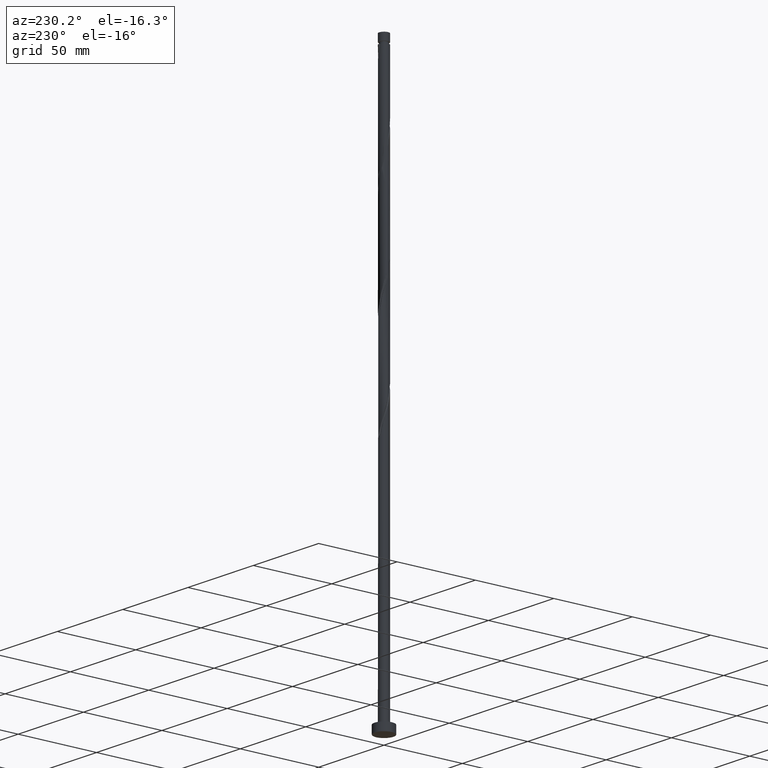
[diagram: clean part render]
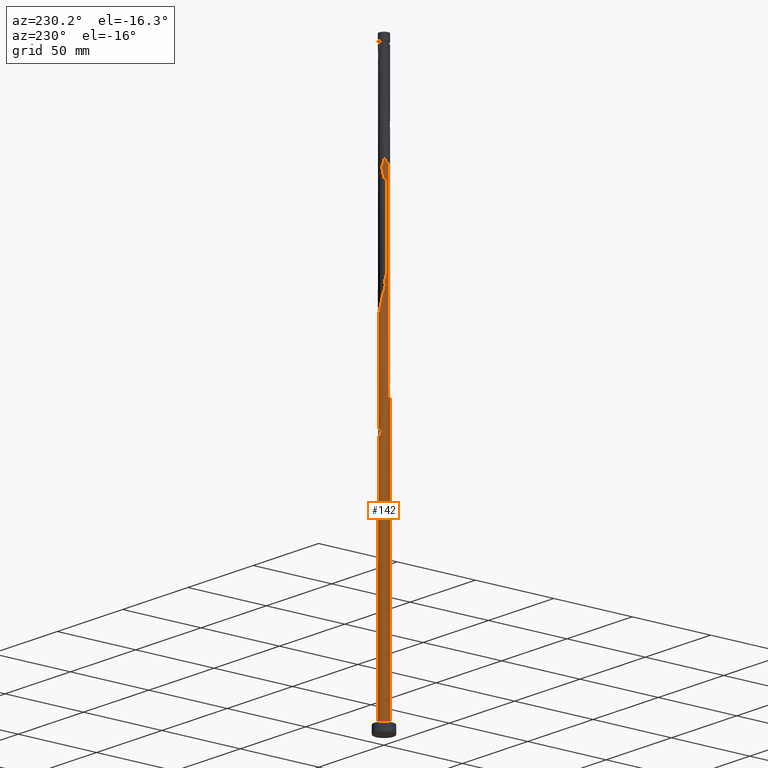
[diagram: same view with one face highlighted and labeled with its STEP entity id]
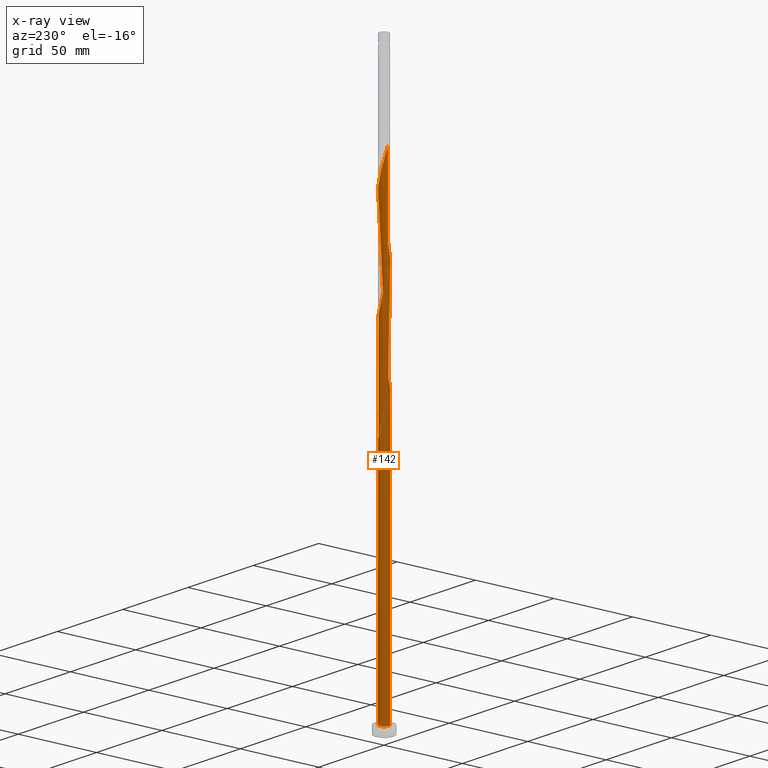
[diagram: x-ray of the same camera — body ghosted, the highlighted face saturated]
A machine part, auxiliary view. The second image highlights one B-rep face of the part: STEP entity #142.
The next image is the same camera in x-ray: the body ghosted, the highlighted face saturated — about 0% of this face is hidden behind the body in this view.
In plain terms, the highlighted cylindrical surface (bore or boss wall) has radius 3 mm, axis along (-0, -0, -1).
Its self-contained STEP definition (entity closure, byte-faithful):
#40 = CARTESIAN_POINT ( 'NONE',  ( 2.956194341916741575, 0.6002808636434365797, 202.1849267626110986 ) ) ;
#49 = CARTESIAN_POINT ( 'NONE',  ( -2.611625341554442148, -1.476283534877588455, 238.8515934292777843 ) ) ;
#62 = CARTESIAN_POINT ( 'NONE',  ( 0.000000000000000000, 0.000000000000000000, 5.000000000000000000 ) ) ;
#68 = CARTESIAN_POINT ( 'NONE',  ( -2.611625341554442148, -1.476283534877588455, 172.1849267626111839 ) ) ;
#83 = CARTESIAN_POINT ( 'NONE',  ( -2.986297077045553916, -0.2864083930844387171, 234.4071489848333556 ) ) ;
#92 = CARTESIAN_POINT ( 'NONE',  ( 2.986297077045553916, 0.2864083930844371628, 201.0738156515000696 ) ) ;
#98 = CARTESIAN_POINT ( 'NONE',  ( -2.247618455994262465, 1.987010638188425382, 163.2960378737222698 ) ) ;
#100 = CARTESIAN_POINT ( 'NONE',  ( 0.9582386936374930331, 2.860279830445437099, 213.2960378737222698 ) ) ;
#106 = CARTESIAN_POINT ( 'NONE',  ( -2.844610918258239529, 0.9529893618115767850, 163.2960378737222698 ) ) ;
#110 = CARTESIAN_POINT ( 'NONE',  ( -2.211065689225172992, 2.027606598413812744, 292.1849267626112692 ) ) ;
#116 = CARTESIAN_POINT ( 'NONE',  ( -1.484415317302710813, 2.626010904050888328, 155.5182600959444699 ) ) ;
#124 = CARTESIAN_POINT ( 'NONE',  ( -2.584311715169902879, 1.523592123514563745, 161.0738156515001265 ) ) ;
#126 = CARTESIAN_POINT ( 'NONE',  ( 2.211065689225172992, -2.027606598413812744, 258.8515934292778411 ) ) ;
#141 = CARTESIAN_POINT ( 'NONE',  ( 0.000000000000000000, 0.000000000000000000, 358.0000000000000000 ) ) ;
#142 = ADVANCED_FACE ( 'NONE', ( #454 ), #891, .T. ) ;
#147 = LINE ( 'NONE', #191, #238 ) ;
#185 = CARTESIAN_POINT ( 'NONE',  ( -0.02731362638454002886, -2.999875658392152200, 183.2960378737222982 ) ) ;
#191 = CARTESIAN_POINT ( 'NONE',  ( -3.000000000000000444, 0.000000000000000000, 358.0000000000000000 ) ) ;
#194 = VERTEX_POINT ( 'NONE', #1375 ) ;
#195 = EDGE_CURVE ( 'NONE', #828, #194, #651, .T. ) ;
#196 = CARTESIAN_POINT ( 'NONE',  ( -2.944774136347770632, 0.6540087066196507148, 231.0738156515000412 ) ) ;
#230 = CARTESIAN_POINT ( 'NONE',  ( -2.861491667719901599, -0.9010357570982421294, 236.6293712070556410 ) ) ;
#237 = CARTESIAN_POINT ( 'NONE',  ( -2.956194341916741575, -0.6002808636434369127, 168.8515934292778411 ) ) ;
#238 = VECTOR ( 'NONE', #1182, 1000.000000000000000 ) ;
#243 = CARTESIAN_POINT ( 'NONE',  ( -0.3426132633519640147, -2.997004880578673980, 248.8515934292777843 ) ) ;
#249 = CARTESIAN_POINT ( 'NONE',  ( -3.000000000000003997, 0.1709212123392956084, 166.1205588763717174 ) ) ;
#251 = CARTESIAN_POINT ( 'NONE',  ( 2.844610918258240417, -0.9529893618115777842, 196.6293712070556126 ) ) ;
#256 = CARTESIAN_POINT ( 'NONE',  ( -3.000000000000003553, -3.632464947221577223E-15, 166.7261501857563246 ) ) ;
#258 = CARTESIAN_POINT ( 'NONE',  ( 2.424175730171095555, -1.795214230025625968, 259.9627045403889838 ) ) ;
#265 = CARTESIAN_POINT ( 'NONE',  ( -0.9582386936374900355, 2.860279830445434879, 157.7404823181667552 ) ) ;
#269 = CARTESIAN_POINT ( 'NONE',  ( 2.766788993523061624, 1.201790650553045792, 271.0738156515000128 ) ) ;
#278 = CARTESIAN_POINT ( 'NONE',  ( 2.844610918258240417, -0.9529893618115777842, 263.2960378737222413 ) ) ;
#297 = CARTESIAN_POINT ( 'NONE',  ( 2.744447700168709758, -1.251970017003502855, 262.1849267626111555 ) ) ;
#310 = ORIENTED_EDGE ( 'NONE', *, *, #1020, .T. ) ;
#331 = CARTESIAN_POINT ( 'NONE',  ( -2.956194341916741575, -0.6002808636434369127, 235.5182600959444983 ) ) ;
#341 = CARTESIAN_POINT ( 'NONE',  ( 0.02731362638454045560, 2.999875658392152200, 216.6293712070555273 ) ) ;
#349 = CARTESIAN_POINT ( 'NONE',  ( -2.456461689585823116, -1.750776419202129119, 173.2960378737222413 ) ) ;
#368 = DIRECTION ( 'NONE',  ( 0.000000000000000000, 0.000000000000000000, 1.000000000000000000 ) ) ;
#371 = CARTESIAN_POINT ( 'NONE',  ( 3.000000000000000444, 0.000000000000000000, 5.000000000000000000 ) ) ;
#374 = CARTESIAN_POINT ( 'NONE',  ( 2.247618455994266462, 1.987010638188425382, 207.7404823181667268 ) ) ;
#379 = DIRECTION ( 'NONE',  ( 1.000000000000000000, 0.000000000000000000, 0.000000000000000000 ) ) ;
#380 = EDGE_CURVE ( 'NONE', #488, #598, #1190, .T. ) ;
#384 = CARTESIAN_POINT ( 'NONE',  ( -1.741185482790980066, 2.443004935426443591, 223.2960378737222982 ) ) ;
#393 = CARTESIAN_POINT ( 'NONE',  ( 2.944774136347770188, -0.6540087066196526022, 197.7404823181666416 ) ) ;
#395 = EDGE_CURVE ( 'NONE', #828, #719, #788, .T. ) ;
#408 = CARTESIAN_POINT ( 'NONE',  ( 0.2879860105828859762, 3.002746436205628644, 153.2960378737222982 ) ) ;
#410 = CARTESIAN_POINT ( 'NONE',  ( 2.944774136347770188, -0.6540087066196526022, 264.4071489848333272 ) ) ;
#415 = VECTOR ( 'NONE', #1797, 1000.000000000000000 ) ;
#419 = CARTESIAN_POINT ( 'NONE',  ( 1.195207115623886596, -2.751632233922632231, 254.4071489848333556 ) ) ;
#429 = CARTESIAN_POINT ( 'NONE',  ( -1.195207115623887706, 2.751632233922632231, 287.7404823181666984 ) ) ;
#443 = DIRECTION ( 'NONE',  ( -1.000000000000000000, 0.000000000000000000, 0.000000000000000000 ) ) ;
#449 = AXIS2_PLACEMENT_3D ( 'NONE', #62, #654, #1825 ) ;
#454 = FACE_OUTER_BOUND ( 'NONE', #1772, .T. ) ;
#475 = CARTESIAN_POINT ( 'NONE',  ( -2.980586974261068445, 0.3407363920471043750, 232.1849267626111839 ) ) ;
#481 = CARTESIAN_POINT ( 'NONE',  ( -3.000000000000003553, -3.632464947221577223E-15, 166.7261501857563246 ) ) ;
#488 = VERTEX_POINT ( 'NONE', #700 ) ;
#489 = CARTESIAN_POINT ( 'NONE',  ( 0.5969924622639748435, -2.940000000000003944, 185.5182600959444699 ) ) ;
#498 = CARTESIAN_POINT ( 'NONE',  ( -2.844610918258239529, 0.9529893618115767850, 229.9627045403888985 ) ) ;
#525 = CARTESIAN_POINT ( 'NONE',  ( -2.766788993523061180, -1.201790650553047346, 171.0738156515000128 ) ) ;
#529 = CARTESIAN_POINT ( 'NONE',  ( -1.531984494871653890, -2.598546826576329849, 244.4071489848333556 ) ) ;
#532 = ORIENTED_EDGE ( 'NONE', *, *, #1286, .F. ) ;
#538 = CARTESIAN_POINT ( 'NONE',  ( 2.861491667719901599, 0.9010357570982413522, 203.2960378737222982 ) ) ;
#543 = CIRCLE ( 'NONE', #449, 3.000000000000000444 ) ;
#547 = CARTESIAN_POINT ( 'NONE',  ( -3.000000000000006217, 0.1709212123392917226, 299.4538922097051454 ) ) ;
#552 = CARTESIAN_POINT ( 'NONE',  ( -0.5969924622639745104, 2.940000000000003499, 152.1849267626111271 ) ) ;
#554 = CARTESIAN_POINT ( 'NONE',  ( 2.247618455994266462, 1.987010638188425382, 274.4071489848334409 ) ) ;
#561 = CARTESIAN_POINT ( 'NONE',  ( -2.744447700168709758, 1.251970017003502411, 162.1849267626111555 ) ) ;
#563 = CARTESIAN_POINT ( 'NONE',  ( -2.744447700168709758, 1.251970017003502411, 295.5182600959444130 ) ) ;
#573 = CARTESIAN_POINT ( 'NONE',  ( -2.424175730171096443, 1.795214230025625302, 293.2960378737222413 ) ) ;
#576 = ORIENTED_EDGE ( 'NONE', *, *, #195, .F. ) ;
#579 = CARTESIAN_POINT ( 'NONE',  ( -2.211065689225172992, 2.027606598413812744, 158.8515934292777843 ) ) ;
#598 = VERTEX_POINT ( 'NONE', #620 ) ;
#620 = CARTESIAN_POINT ( 'NONE',  ( 0.5969924622639757317, 2.940000000000000835, 152.1849267626111271 ) ) ;
#633 = CARTESIAN_POINT ( 'NONE',  ( 2.456461689585824448, 1.750776419202128231, 206.6293712070555841 ) ) ;
#643 = ORIENTED_EDGE ( 'NONE', *, *, #1366, .F. ) ;
#644 = CARTESIAN_POINT ( 'NONE',  ( -2.247618455994265574, -1.987010638188425826, 241.0738156515000696 ) ) ;
#651 = LINE ( 'NONE', #1221, #415 ) ;
#654 = DIRECTION ( 'NONE',  ( 0.000000000000000000, 0.000000000000000000, 1.000000000000000000 ) ) ;
#674 = CARTESIAN_POINT ( 'NONE',  ( -2.456461689585823116, -1.750776419202129119, 239.9627045403889269 ) ) ;
#681 = CARTESIAN_POINT ( 'NONE',  ( -2.211065689225172992, 2.027606598413812744, 225.5182600959444983 ) ) ;
#685 = CARTESIAN_POINT ( 'NONE',  ( 0.000000000000000000, 0.000000000000000000, 5.000000000000000000 ) ) ;
#686 = CARTESIAN_POINT ( 'NONE',  ( -2.038775222402706699, -2.223244857174724309, 175.5182600959444983 ) ) ;
#688 = CARTESIAN_POINT ( 'NONE',  ( -1.245111594254570742, 2.729413328510881254, 158.8515934292777274 ) ) ;
#690 = CARTESIAN_POINT ( 'NONE',  ( -2.944774136347770632, 0.6540087066196507148, 297.7404823181666984 ) ) ;
#698 = CARTESIAN_POINT ( 'NONE',  ( -2.956194341916738466, 0.6002808636434369127, 168.8515934292778695 ) ) ;
#700 = CARTESIAN_POINT ( 'NONE',  ( -0.5969924622639745104, 2.940000000000003499, 152.1849267626111271 ) ) ;
#708 = CARTESIAN_POINT ( 'NONE',  ( 1.785379858637181405, 2.410895841875525747, 276.6293712070556694 ) ) ;
#714 = CARTESIAN_POINT ( 'NONE',  ( -2.980586974261068445, 0.3407363920471043750, 165.5182600959444983 ) ) ;
#716 = CARTESIAN_POINT ( 'NONE',  ( 2.456461689585824448, 1.750776419202128231, 273.2960378737222982 ) ) ;
#719 = VERTEX_POINT ( 'NONE', #1081 ) ;
#724 = CARTESIAN_POINT ( 'NONE',  ( -1.997955648279249319, 2.259998966802000631, 157.7404823181666416 ) ) ;
#727 = CARTESIAN_POINT ( 'NONE',  ( 0.3426132633519643478, 2.997004880578673980, 282.1849267626111555 ) ) ;
#731 = DIRECTION ( 'NONE',  ( -0.000000000000000000, -0.000000000000000000, -1.000000000000000000 ) ) ;
#733 = EDGE_CURVE ( 'NONE', #719, #1487, #147, .T. ) ;
#777 = CARTESIAN_POINT ( 'NONE',  ( 0.9059989139450632667, -2.877253563794376578, 186.6293712070556126 ) ) ;
#787 = CARTESIAN_POINT ( 'NONE',  ( -2.766788993523061180, -1.201790650553047346, 237.7404823181666700 ) ) ;
#788 =( BOUNDED_CURVE ( )  B_SPLINE_CURVE ( 2, ( #481, #1071, #807, #237, #1086, #525, #68, #349, #1867, #686, #1147, #1273, #996, #1126, #1414, #1702, #185, #842, #489, #777, #1845, #833, #1261, #1077, #925, #1118, #1692, #1511, #251, #393, #1357, #1502, #92, #40, #538, #1269, #986, #633, #374, #1639, #1558, #1219, #1085, #100, #1406, #1651, #341, #1540, #1794, #1209, #1397, #936, #384, #823, #681, #1365, #1782, #1836, #498, #196, #475, #1066, #83, #331, #230, #787, #49, #674, #644, #1229, #977, #529, #1805, #1659, #1550, #243, #968, #1277, #1889, #860, #419, #1854, #876, #1600, #126, #258, #1029, #297, #278, #410, #1449, #1861, #1305, #849, #887, #269, #1422, #716, #554, #993, #708, #1002, #1433, #1879, #1296, #727, #1012, #867, #1583, #1591, #429, #1135, #1745, #1871, #110, #573, #1573, #563, #1461, #690, #1162, #547, #1021 ),
 .UNSPECIFIED., .F., .T. ) 
 B_SPLINE_CURVE_WITH_KNOTS ( ( 3, 2, 2, 2, 2, 2, 2, 2, 2, 2, 2, 2, 2, 2, 2, 2, 2, 2, 2, 2, 2, 2, 2, 2, 2, 2, 2, 2, 2, 2, 2, 2, 2, 2, 2, 2, 2, 2, 2, 2, 2, 2, 2, 2, 2, 2, 2, 2, 2, 2, 2, 2, 2, 2, 2, 2, 2, 2, 2, 2, 2, 3 ),
 ( 0.05452860127731152390, 0.05833333333333334814, 0.06666666666666665186, 0.07499999999999995559, 0.08333333333333337034, 0.09166666666666667407, 0.09999999999999997780, 0.1083333333333332815, 0.1166666666666666963, 0.1250000000000000000, 0.1333333333333333037, 0.1416666666666667185, 0.1500000000000000222, 0.1583333333333333259, 0.1666666666666666297, 0.1750000000000000444, 0.1833333333333333481, 0.1916666666666666519, 0.1999999999999999556, 0.2083333333333333703, 0.2166666666666666741, 0.2249999999999999778, 0.2333333333333332815, 0.2416666666666666963, 0.2500000000000000000, 0.2583333333333333037, 0.2666666666666667185, 0.2750000000000000222, 0.2833333333333333259, 0.2916666666666666297, 0.3000000000000000444, 0.3083333333333333481, 0.3166666666666666519, 0.3249999999999999556, 0.3333333333333333703, 0.3416666666666666741, 0.3499999999999999778, 0.3583333333333332815, 0.3666666666666666963, 0.3750000000000000000, 0.3833333333333333037, 0.3916666666666667185, 0.4000000000000000222, 0.4083333333333333259, 0.4166666666666666297, 0.4250000000000000444, 0.4333333333333333481, 0.4416666666666666519, 0.4499999999999999556, 0.4583333333333333703, 0.4666666666666666741, 0.4749999999999999778, 0.4833333333333332815, 0.4916666666666666963, 0.5000000000000000000, 0.5083333333333333037, 0.5166666666666666075, 0.5250000000000000222, 0.5333333333333333259, 0.5416666666666667407, 0.5500000000000000444, 0.5545286012773116280 ),
 .UNSPECIFIED. ) 
 CURVE ( )  GEOMETRIC_REPRESENTATION_ITEM ( )  RATIONAL_B_SPLINE_CURVE ( ( 0.9066196499552440224, 0.9068171577856567467, 0.9090909090909556900, 0.9041108139712038527, 0.9090909090909556900, 0.9041108139712038527, 0.9090909090909556900, 0.9041108139712038527, 0.9090909090909556900, 0.9041108139712038527, 0.9090909090909556900, 0.9041108139712038527, 0.9090909090909556900, 0.9041108139712038527, 0.9090909090909556900, 0.9041108139712038527, 0.9090909090909556900, 0.9041108139712038527, 0.9090909090909556900, 0.9041108139712038527, 0.9090909090909556900, 0.9041108139712038527, 0.9090909090909556900, 0.9041108139712038527, 0.9090909090909556900, 0.9041108139712038527, 0.9090909090909556900, 0.9041108139712038527, 0.9090909090909556900, 0.9041108139712038527, 0.9090909090909556900, 0.9041108139712038527, 0.9090909090909556900, 0.9041108139712038527, 0.9090909090909556900, 0.9041108139712038527, 0.9090909090909556900, 0.9041108139712038527, 0.9090909090909556900, 0.9041108139712038527, 0.9090909090909556900, 0.9041108139712038527, 0.9090909090909556900, 0.9041108139712038527, 0.9090909090909556900, 0.9041108139712038527, 0.9090909090909556900, 0.9041108139712038527, 0.9090909090909556900, 0.9041108139712038527, 0.9090909090909556900, 0.9041108139712038527, 0.9090909090909556900, 0.9041108139712038527, 0.9090909090909556900, 0.9041108139712038527, 0.9090909090909556900, 0.9041108139712038527, 0.9090909090909556900, 0.9041108139712038527, 0.9090909090909556900, 0.9041108139712038527, 0.9090909090909556900, 0.9041108139712038527, 0.9090909090909556900, 0.9041108139712038527, 0.9090909090909556900, 0.9041108139712038527, 0.9090909090909556900, 0.9041108139712038527, 0.9090909090909556900, 0.9041108139712038527, 0.9090909090909556900, 0.9041108139712038527, 0.9090909090909556900, 0.9041108139712038527, 0.9090909090909556900, 0.9041108139712038527, 0.9090909090909556900, 0.9041108139712038527, 0.9090909090909556900, 0.9041108139712038527, 0.9090909090909556900, 0.9041108139712038527, 0.9090909090909556900, 0.9041108139712038527, 0.9090909090909556900, 0.9041108139712038527, 0.9090909090909556900, 0.9041108139712038527, 0.9090909090909556900, 0.9041108139712038527, 0.9090909090909556900, 0.9041108139712038527, 0.9090909090909556900, 0.9041108139712038527, 0.9090909090909556900, 0.9041108139712038527, 0.9090909090909556900, 0.9041108139712038527, 0.9090909090909556900, 0.9041108139712038527, 0.9090909090909556900, 0.9041108139712038527, 0.9090909090909556900, 0.9041108139712038527, 0.9090909090909556900, 0.9041108139712038527, 0.9090909090909556900, 0.9041108139712038527, 0.9090909090909556900, 0.9041108139712038527, 0.9090909090909556900, 0.9041108139712038527, 0.9090909090909556900, 0.9041108139712038527, 0.9090909090909556900, 0.9041108139712038527, 0.9090909090909556900, 0.9041108139712038527, 0.9090909090909556900, 0.9063845652765026850, 0.9066196499552440224 ) ) 
 REPRESENTATION_ITEM ( '' )  );
#798 =( BOUNDED_CURVE ( )  B_SPLINE_CURVE ( 2, ( #552, #1294, #1563, #116, #1556, #724, #579, #1742, #124, #561, #106, #1420, #714, #249, #256 ),
 .UNSPECIFIED., .F., .T. ) 
 B_SPLINE_CURVE_WITH_KNOTS ( ( 3, 2, 2, 2, 2, 2, 2, 3 ),
 ( 0.000000000000000000, 0.008333333333333303727, 0.01666666666666671848, 0.02500000000000002220, 0.03333333333333332593, 0.04166666666666662966, 0.05000000000000004441, 0.05452860127731152390 ),
 .UNSPECIFIED. ) 
 CURVE ( )  GEOMETRIC_REPRESENTATION_ITEM ( )  RATIONAL_B_SPLINE_CURVE ( ( 0.9090909090909556900, 0.9041108139712038527, 0.9090909090909556900, 0.9041108139712038527, 0.9090909090909556900, 0.9041108139712038527, 0.9090909090909556900, 0.9041108139712038527, 0.9090909090909556900, 0.9041108139712038527, 0.9090909090909556900, 0.9041108139712038527, 0.9090909090909556900, 0.9063845652765027960, 0.9066196499552440224 ) ) 
 REPRESENTATION_ITEM ( '' )  );
#807 = CARTESIAN_POINT ( 'NONE',  ( -2.986297077045553916, -0.2864083930844387171, 167.7404823181667268 ) ) ;
#823 = CARTESIAN_POINT ( 'NONE',  ( -1.997955648279249319, 2.259998966802000631, 224.4071489848333840 ) ) ;
#828 = VERTEX_POINT ( 'NONE', #1393 ) ;
#833 = CARTESIAN_POINT ( 'NONE',  ( 1.484415317302710813, -2.626010904050888328, 188.8515934292778127 ) ) ;
#842 = CARTESIAN_POINT ( 'NONE',  ( 0.2879860105828851990, -3.002746436205631753, 184.4071489848333272 ) ) ;
#849 = CARTESIAN_POINT ( 'NONE',  ( 2.956194341916741575, 0.6002808636434365797, 268.8515934292777843 ) ) ;
#857 = CARTESIAN_POINT ( 'NONE',  ( -0.02731362638453826638, 2.999875658392149536, 154.4071489848333840 ) ) ;
#859 = CARTESIAN_POINT ( 'NONE',  ( 0.000000000000000000, 0.000000000000000000, 152.1849267626111271 ) ) ;
#860 = CARTESIAN_POINT ( 'NONE',  ( 0.9059989139450632667, -2.877253563794376578, 253.2960378737222413 ) ) ;
#863 = VERTEX_POINT ( 'NONE', #371 ) ;
#867 = CARTESIAN_POINT ( 'NONE',  ( -0.2879860105828834782, 3.002746436205632197, 284.4071489848333272 ) ) ;
#876 = CARTESIAN_POINT ( 'NONE',  ( 1.741185482790979400, -2.443004935426444924, 256.6293712070556694 ) ) ;
#887 = CARTESIAN_POINT ( 'NONE',  ( 2.861491667719901599, 0.9010357570982413522, 269.9627045403888701 ) ) ;
#891 = CYLINDRICAL_SURFACE ( 'NONE', #1880, 3.000000000000000444 ) ;
#925 = CARTESIAN_POINT ( 'NONE',  ( 2.211065689225172992, -2.027606598413812744, 192.1849267626111555 ) ) ;
#935 = ORIENTED_EDGE ( 'NONE', *, *, #195, .T. ) ;
#936 = CARTESIAN_POINT ( 'NONE',  ( -1.484415317302710813, 2.626010904050888328, 222.1849267626111555 ) ) ;
#968 = CARTESIAN_POINT ( 'NONE',  ( -0.02731362638454002886, -2.999875658392152200, 249.9627045403889269 ) ) ;
#977 = CARTESIAN_POINT ( 'NONE',  ( -1.785379858637180961, -2.410895841875526635, 243.2960378737222698 ) ) ;
#986 = CARTESIAN_POINT ( 'NONE',  ( 2.611625341554442148, 1.476283534877588011, 205.5182600959444983 ) ) ;
#993 = CARTESIAN_POINT ( 'NONE',  ( 2.038775222402707588, 2.223244857174724309, 275.5182600959444130 ) ) ;
#996 = CARTESIAN_POINT ( 'NONE',  ( -1.245111594254573406, -2.729413328510883474, 178.8515934292778411 ) ) ;
#999 = CARTESIAN_POINT ( 'NONE',  ( -2.986297077045550363, 0.2864083930844398829, 169.9627045403889554 ) ) ;
#1002 = CARTESIAN_POINT ( 'NONE',  ( 1.531984494871655222, 2.598546826576328517, 277.7404823181666984 ) ) ;
#1012 = CARTESIAN_POINT ( 'NONE',  ( 0.02731362638454045560, 2.999875658392152200, 283.2960378737222413 ) ) ;
#1020 = EDGE_CURVE ( 'NONE', #863, #194, #543, .T. ) ;
#1021 = CARTESIAN_POINT ( 'NONE',  ( -3.000000000000004441, -1.375254218701173101E-15, 300.0594835190896674 ) ) ;
#1029 = CARTESIAN_POINT ( 'NONE',  ( 2.584311715169902435, -1.523592123514564411, 261.0738156515000696 ) ) ;
#1048 = DIRECTION ( 'NONE',  ( 0.000000000000000000, -0.000000000000000000, -1.000000000000000000 ) ) ;
#1066 = CARTESIAN_POINT ( 'NONE',  ( -3.016399812174364481, 0.02746407747455866313, 233.2960378737223550 ) ) ;
#1071 = CARTESIAN_POINT ( 'NONE',  ( -3.000000000000003997, -0.1435319978602510316, 167.2346987113204193 ) ) ;
#1077 = CARTESIAN_POINT ( 'NONE',  ( 1.997955648279248875, -2.259998966802001075, 191.0738156515000128 ) ) ;
#1081 = CARTESIAN_POINT ( 'NONE',  ( -3.000000000000004441, -1.375254218701173101E-15, 300.0594835190896674 ) ) ;
#1085 = CARTESIAN_POINT ( 'NONE',  ( 1.245111594254573406, 2.729413328510883474, 212.1849267626110702 ) ) ;
#1086 = CARTESIAN_POINT ( 'NONE',  ( -2.861491667719901599, -0.9010357570982421294, 169.9627045403889269 ) ) ;
#1109 = CARTESIAN_POINT ( 'NONE',  ( -3.000000000000001332, -3.497929208435612865E-15, 170.9770366727993576 ) ) ;
#1118 = CARTESIAN_POINT ( 'NONE',  ( 2.424175730171095555, -1.795214230025625968, 193.2960378737223266 ) ) ;
#1126 = CARTESIAN_POINT ( 'NONE',  ( -0.9582386936374922559, -2.860279830445437099, 179.9627045403889269 ) ) ;
#1131 = CIRCLE ( 'NONE', #1156, 3.000000000000000444 ) ;
#1135 = CARTESIAN_POINT ( 'NONE',  ( -1.484415317302710813, 2.626010904050888328, 288.8515934292777843 ) ) ;
#1147 = CARTESIAN_POINT ( 'NONE',  ( -1.785379858637180961, -2.410895841875526635, 176.6293712070556126 ) ) ;
#1156 = AXIS2_PLACEMENT_3D ( 'NONE', #685, #368, #379 ) ;
#1159 = CARTESIAN_POINT ( 'NONE',  ( -1.531984494871650782, 2.598546826576327184, 159.9627045403889554 ) ) ;
#1162 = CARTESIAN_POINT ( 'NONE',  ( -2.980586974261068445, 0.3407363920471043750, 298.8515934292778979 ) ) ;
#1182 = DIRECTION ( 'NONE',  ( -0.000000000000000000, -0.000000000000000000, -1.000000000000000000 ) ) ;
#1190 = CIRCLE ( 'NONE', #1760, 3.000000000000000444 ) ;
#1209 = CARTESIAN_POINT ( 'NONE',  ( -0.9059989139450643769, 2.877253563794375690, 219.9627045403889838 ) ) ;
#1219 = CARTESIAN_POINT ( 'NONE',  ( 1.531984494871655222, 2.598546826576328517, 211.0738156515000128 ) ) ;
#1221 = CARTESIAN_POINT ( 'NONE',  ( -3.000000000000000444, 0.000000000000000000, 358.0000000000000000 ) ) ;
#1229 = CARTESIAN_POINT ( 'NONE',  ( -2.038775222402706699, -2.223244857174724309, 242.1849267626111271 ) ) ;
#1261 = CARTESIAN_POINT ( 'NONE',  ( 1.741185482790979400, -2.443004935426444924, 189.9627045403888985 ) ) ;
#1269 = CARTESIAN_POINT ( 'NONE',  ( 2.766788993523061624, 1.201790650553045792, 204.4071489848333272 ) ) ;
#1273 = CARTESIAN_POINT ( 'NONE',  ( -1.531984494871653890, -2.598546826576329849, 177.7404823181666984 ) ) ;
#1275 = CARTESIAN_POINT ( 'NONE',  ( -0.3426132633519628490, 2.997004880578669539, 155.5182600959445267 ) ) ;
#1277 = CARTESIAN_POINT ( 'NONE',  ( 0.2879860105828851990, -3.002746436205631753, 251.0738156515000412 ) ) ;
#1285 = CARTESIAN_POINT ( 'NONE',  ( -2.766788993523057627, 1.201790650553047346, 166.6293712070555273 ) ) ;
#1286 = EDGE_CURVE ( 'NONE', #488, #828, #798, .T. ) ;
#1294 = CARTESIAN_POINT ( 'NONE',  ( -0.9059989139450643769, 2.877253563794375690, 153.2960378737222982 ) ) ;
#1296 = CARTESIAN_POINT ( 'NONE',  ( 0.6504259784947299394, 2.928642355512054873, 281.0738156514999559 ) ) ;
#1303 = CARTESIAN_POINT ( 'NONE',  ( -2.861491667719897602, 0.9010357570982423514, 167.7404823181667268 ) ) ;
#1305 = CARTESIAN_POINT ( 'NONE',  ( 2.986297077045553916, 0.2864083930844371628, 267.7404823181667552 ) ) ;
#1311 = CARTESIAN_POINT ( 'NONE',  ( -3.000000000000000888, 0.1435319978602478397, 170.4684881472353766 ) ) ;
#1357 = CARTESIAN_POINT ( 'NONE',  ( 2.980586974261068445, -0.3407363920471048191, 198.8515934292778411 ) ) ;
#1365 = CARTESIAN_POINT ( 'NONE',  ( -2.424175730171096443, 1.795214230025625302, 226.6293712070556126 ) ) ;
#1366 = EDGE_CURVE ( 'NONE', #1487, #598, #1379, .T. ) ;
#1375 = CARTESIAN_POINT ( 'NONE',  ( -3.000000000000000444, 0.000000000000000000, 5.000000000000000000 ) ) ;
#1379 =( BOUNDED_CURVE ( )  B_SPLINE_CURVE ( 2, ( #1412, #1311, #999, #698, #1303, #1285, #1570, #1887, #98, #1877, #1859, #1159, #688, #265, #1715, #1275, #857, #408, #1851 ),
 .UNSPECIFIED., .F., .T. ) 
 B_SPLINE_CURVE_WITH_KNOTS ( ( 3, 2, 2, 2, 2, 2, 2, 2, 2, 3 ),
 ( 0.9295286012773114059, 0.9333333333333333481, 0.9416666666666666519, 0.9499999999999999556, 0.9583333333333333703, 0.9666666666666666741, 0.9749999999999999778, 0.9833333333333332815, 0.9916666666666666963, 1.000000000000000000 ),
 .UNSPECIFIED. ) 
 CURVE ( )  GEOMETRIC_REPRESENTATION_ITEM ( )  RATIONAL_B_SPLINE_CURVE ( ( 0.9066196499552388044, 0.9068171577856515286, 0.9090909090909504719, 0.9041108139711987457, 0.9090909090909504719, 0.9041108139711987457, 0.9090909090909504719, 0.9041108139711987457, 0.9090909090909504719, 0.9041108139711987457, 0.9090909090909504719, 0.9041108139711987457, 0.9090909090909504719, 0.9041108139711987457, 0.9090909090909504719, 0.9041108139711987457, 0.9090909090909504719, 0.9041108139711987457, 0.9090909090909504719 ) ) 
 REPRESENTATION_ITEM ( '' )  );
#1393 = CARTESIAN_POINT ( 'NONE',  ( -3.000000000000003997, -3.632464947221577223E-15, 166.7261501857563246 ) ) ;
#1397 = CARTESIAN_POINT ( 'NONE',  ( -1.195207115623887706, 2.751632233922632231, 221.0738156515000412 ) ) ;
#1406 = CARTESIAN_POINT ( 'NONE',  ( 0.6504259784947299394, 2.928642355512054873, 214.4071489848334409 ) ) ;
#1412 = CARTESIAN_POINT ( 'NONE',  ( -3.000000000000001332, -3.497929208435612865E-15, 170.9770366727993576 ) ) ;
#1414 = CARTESIAN_POINT ( 'NONE',  ( -0.6504259784947283851, -2.928642355512054873, 181.0738156515000128 ) ) ;
#1420 = CARTESIAN_POINT ( 'NONE',  ( -2.944774136347770632, 0.6540087066196507148, 164.4071489848333556 ) ) ;
#1422 = CARTESIAN_POINT ( 'NONE',  ( 2.611625341554442148, 1.476283534877588011, 272.1849267626111555 ) ) ;
#1433 = CARTESIAN_POINT ( 'NONE',  ( 1.245111594254573406, 2.729413328510883474, 278.8515934292777843 ) ) ;
#1436 = ORIENTED_EDGE ( 'NONE', *, *, #733, .F. ) ;
#1449 = CARTESIAN_POINT ( 'NONE',  ( 2.980586974261068445, -0.3407363920471048191, 265.5182600959445267 ) ) ;
#1460 = DIRECTION ( 'NONE',  ( -1.000000000000000000, 0.000000000000000000, 0.000000000000000000 ) ) ;
#1461 = CARTESIAN_POINT ( 'NONE',  ( -2.844610918258239529, 0.9529893618115767850, 296.6293712070554420 ) ) ;
#1487 = VERTEX_POINT ( 'NONE', #1109 ) ;
#1502 = CARTESIAN_POINT ( 'NONE',  ( 3.016399812174364481, -0.02746407747455961376, 199.9627045403888985 ) ) ;
#1511 = CARTESIAN_POINT ( 'NONE',  ( 2.744447700168709758, -1.251970017003502855, 195.5182600959444414 ) ) ;
#1517 = ORIENTED_EDGE ( 'NONE', *, *, #380, .T. ) ;
#1540 = CARTESIAN_POINT ( 'NONE',  ( -0.2879860105828834782, 3.002746436205632197, 217.7404823181666700 ) ) ;
#1550 = CARTESIAN_POINT ( 'NONE',  ( -0.6504259784947283851, -2.928642355512054873, 247.7404823181667268 ) ) ;
#1556 = CARTESIAN_POINT ( 'NONE',  ( -1.741185482790980066, 2.443004935426443591, 156.6293712070556410 ) ) ;
#1558 = CARTESIAN_POINT ( 'NONE',  ( 1.785379858637181405, 2.410895841875525747, 209.9627045403889269 ) ) ;
#1563 = CARTESIAN_POINT ( 'NONE',  ( -1.195207115623887706, 2.751632233922632231, 154.4071489848333840 ) ) ;
#1570 = CARTESIAN_POINT ( 'NONE',  ( -2.611625341554439483, 1.476283534877587122, 165.5182600959444983 ) ) ;
#1573 = CARTESIAN_POINT ( 'NONE',  ( -2.584311715169902879, 1.523592123514563745, 294.4071489848334409 ) ) ;
#1583 = CARTESIAN_POINT ( 'NONE',  ( -0.5969924622639745104, 2.940000000000003944, 285.5182600959445267 ) ) ;
#1591 = CARTESIAN_POINT ( 'NONE',  ( -0.9059989139450643769, 2.877253563794375690, 286.6293712070556126 ) ) ;
#1600 = CARTESIAN_POINT ( 'NONE',  ( 1.997955648279248875, -2.259998966802001075, 257.7404823181666416 ) ) ;
#1639 = CARTESIAN_POINT ( 'NONE',  ( 2.038775222402707588, 2.223244857174724309, 208.8515934292778127 ) ) ;
#1651 = CARTESIAN_POINT ( 'NONE',  ( 0.3426132633519643478, 2.997004880578673980, 215.5182600959444699 ) ) ;
#1659 = CARTESIAN_POINT ( 'NONE',  ( -0.9582386936374922559, -2.860279830445437099, 246.6293712070556126 ) ) ;
#1692 = CARTESIAN_POINT ( 'NONE',  ( 2.584311715169902435, -1.523592123514564411, 194.4071489848333840 ) ) ;
#1695 = ORIENTED_EDGE ( 'NONE', *, *, #395, .F. ) ;
#1702 = CARTESIAN_POINT ( 'NONE',  ( -0.3426132633519640147, -2.997004880578673980, 182.1849267626110986 ) ) ;
#1715 = CARTESIAN_POINT ( 'NONE',  ( -0.6504259784947262757, 2.928642355512051765, 156.6293712070556126 ) ) ;
#1742 = CARTESIAN_POINT ( 'NONE',  ( -2.424175730171096443, 1.795214230025625302, 159.9627045403888985 ) ) ;
#1745 = CARTESIAN_POINT ( 'NONE',  ( -1.741185482790980066, 2.443004935426443591, 289.9627045403889269 ) ) ;
#1760 = AXIS2_PLACEMENT_3D ( 'NONE', #859, #1048, #1460 ) ;
#1772 = EDGE_LOOP ( 'NONE', ( #1436, #1695, #935, #1893, #310, #576, #532, #1517, #643 ) ) ;
#1782 = CARTESIAN_POINT ( 'NONE',  ( -2.584311715169902879, 1.523592123514563745, 227.7404823181666984 ) ) ;
#1794 = CARTESIAN_POINT ( 'NONE',  ( -0.5969924622639745104, 2.940000000000003944, 218.8515934292778127 ) ) ;
#1797 = DIRECTION ( 'NONE',  ( -0.000000000000000000, -0.000000000000000000, -1.000000000000000000 ) ) ;
#1805 = CARTESIAN_POINT ( 'NONE',  ( -1.245111594254573406, -2.729413328510883474, 245.5182600959444699 ) ) ;
#1825 = DIRECTION ( 'NONE',  ( 1.000000000000000000, 0.000000000000000000, 0.000000000000000000 ) ) ;
#1836 = CARTESIAN_POINT ( 'NONE',  ( -2.744447700168709758, 1.251970017003502411, 228.8515934292778127 ) ) ;
#1845 = CARTESIAN_POINT ( 'NONE',  ( 1.195207115623886596, -2.751632233922632231, 187.7404823181666984 ) ) ;
#1851 = CARTESIAN_POINT ( 'NONE',  ( 0.5969924622639757317, 2.940000000000000835, 152.1849267626110986 ) ) ;
#1854 = CARTESIAN_POINT ( 'NONE',  ( 1.484415317302710813, -2.626010904050888328, 255.5182600959444699 ) ) ;
#1859 = CARTESIAN_POINT ( 'NONE',  ( -1.785379858637177852, 2.410895841875524415, 161.0738156515000412 ) ) ;
#1861 = CARTESIAN_POINT ( 'NONE',  ( 3.016399812174364481, -0.02746407747455961376, 266.6293712070556694 ) ) ;
#1867 = CARTESIAN_POINT ( 'NONE',  ( -2.247618455994265574, -1.987010638188425826, 174.4071489848334124 ) ) ;
#1871 = CARTESIAN_POINT ( 'NONE',  ( -1.997955648279249319, 2.259998966802000631, 291.0738156515000128 ) ) ;
#1877 = CARTESIAN_POINT ( 'NONE',  ( -2.038775222402704479, 2.223244857174722977, 162.1849267626111555 ) ) ;
#1879 = CARTESIAN_POINT ( 'NONE',  ( 0.9582386936374930331, 2.860279830445437099, 279.9627045403890406 ) ) ;
#1880 = AXIS2_PLACEMENT_3D ( 'NONE', #141, #731, #443 ) ;
#1885 = EDGE_CURVE ( 'NONE', #194, #863, #1131, .T. ) ;
#1887 = CARTESIAN_POINT ( 'NONE',  ( -2.456461689585820451, 1.750776419202128231, 164.4071489848334124 ) ) ;
#1889 = CARTESIAN_POINT ( 'NONE',  ( 0.5969924622639748435, -2.940000000000003944, 252.1849267626112407 ) ) ;
#1893 = ORIENTED_EDGE ( 'NONE', *, *, #1885, .T. ) ;